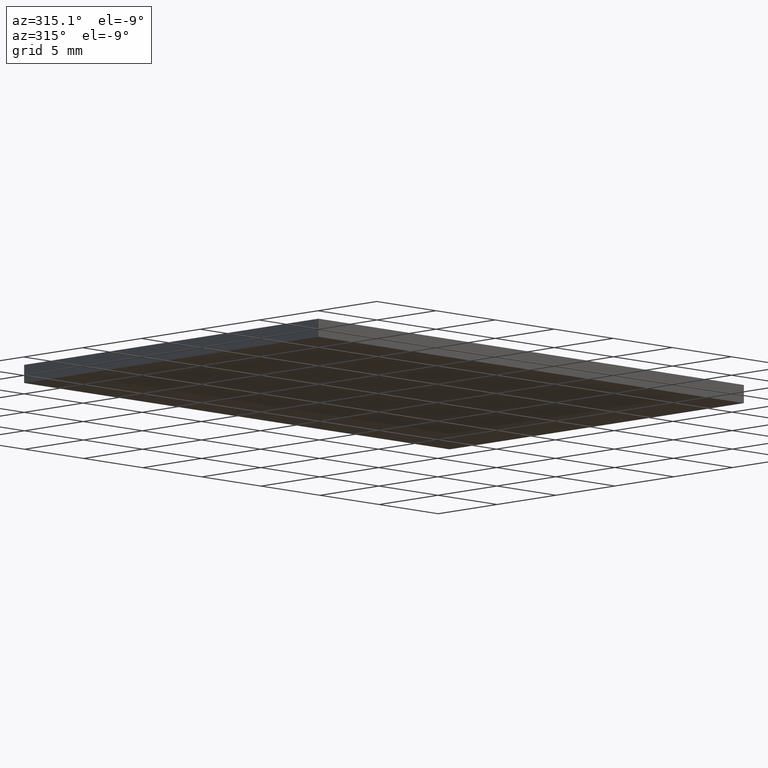
[diagram: clean part render]
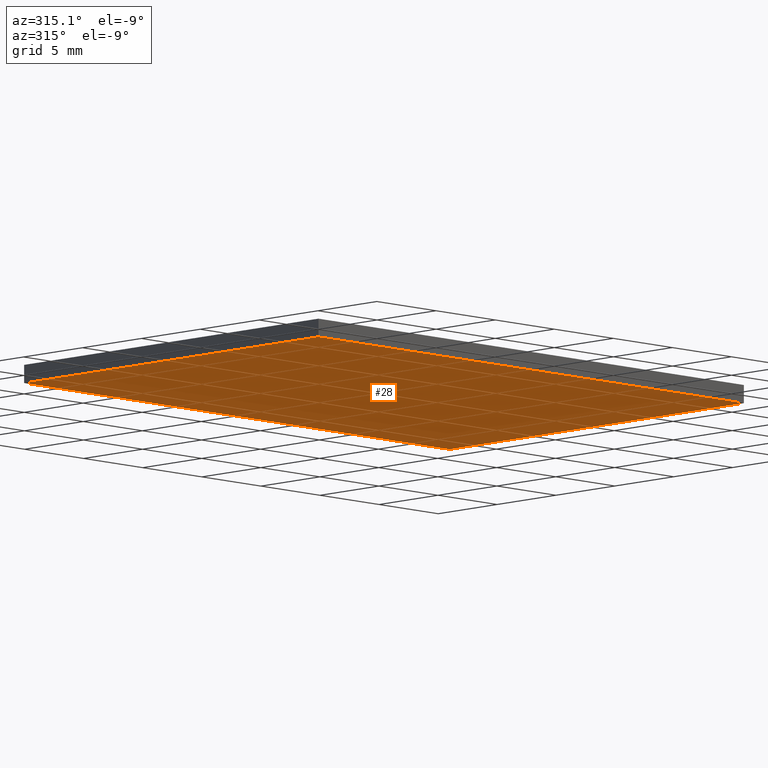
[diagram: same view with one face highlighted and labeled with its STEP entity id]
A machine part, auxiliary view. The second image highlights one B-rep face of the part: STEP entity #28.
In plain terms, the highlighted planar face has unit normal (0, 0, -1).
Its self-contained STEP definition (entity closure, byte-faithful):
#5 = EDGE_CURVE ( 'NONE', #15, #185, #174, .T. ) ;
#11 = CARTESIAN_POINT ( 'NONE',  ( 0.000000000000000000, 25.00000000000000000, 0.000000000000000000 ) ) ;
#14 = DIRECTION ( 'NONE',  ( 0.000000000000000000, 1.000000000000000000, 0.000000000000000000 ) ) ;
#15 = VERTEX_POINT ( 'NONE', #73 ) ;
#17 = VECTOR ( 'NONE', #55, 1000.000000000000000 ) ;
#28 = ADVANCED_FACE ( 'NONE', ( #133 ), #153, .T. ) ;
#33 = CARTESIAN_POINT ( 'NONE',  ( 0.000000000000000000, 0.000000000000000000, 0.000000000000000000 ) ) ;
#34 = AXIS2_PLACEMENT_3D ( 'NONE', #57, #198, #169 ) ;
#35 = CARTESIAN_POINT ( 'NONE',  ( 0.000000000000000000, 0.000000000000000000, 0.000000000000000000 ) ) ;
#36 = CARTESIAN_POINT ( 'NONE',  ( 36.00000000000000000, 0.000000000000000000, 0.000000000000000000 ) ) ;
#55 = DIRECTION ( 'NONE',  ( 1.000000000000000000, 0.000000000000000000, 0.000000000000000000 ) ) ;
#57 = CARTESIAN_POINT ( 'NONE',  ( 0.000000000000000000, 0.000000000000000000, 0.000000000000000000 ) ) ;
#60 = ORIENTED_EDGE ( 'NONE', *, *, #74, .F. ) ;
#61 = EDGE_LOOP ( 'NONE', ( #172, #60, #78, #173 ) ) ;
#64 = EDGE_CURVE ( 'NONE', #185, #141, #182, .T. ) ;
#71 = VECTOR ( 'NONE', #95, 1000.000000000000000 ) ;
#73 = CARTESIAN_POINT ( 'NONE',  ( 0.000000000000000000, 0.000000000000000000, 0.000000000000000000 ) ) ;
#74 = EDGE_CURVE ( 'NONE', #141, #123, #134, .T. ) ;
#78 = ORIENTED_EDGE ( 'NONE', *, *, #64, .F. ) ;
#82 = EDGE_CURVE ( 'NONE', #123, #15, #110, .T. ) ;
#83 = DIRECTION ( 'NONE',  ( -1.000000000000000000, -0.000000000000000000, -0.000000000000000000 ) ) ;
#85 = CARTESIAN_POINT ( 'NONE',  ( 36.00000000000000000, 25.00000000000000000, 0.000000000000000000 ) ) ;
#90 = CARTESIAN_POINT ( 'NONE',  ( 36.00000000000000000, 0.000000000000000000, 0.000000000000000000 ) ) ;
#95 = DIRECTION ( 'NONE',  ( -0.000000000000000000, -1.000000000000000000, -0.000000000000000000 ) ) ;
#110 = LINE ( 'NONE', #35, #71 ) ;
#123 = VERTEX_POINT ( 'NONE', #11 ) ;
#133 = FACE_OUTER_BOUND ( 'NONE', #61, .T. ) ;
#134 = LINE ( 'NONE', #188, #176 ) ;
#141 = VERTEX_POINT ( 'NONE', #85 ) ;
#153 = PLANE ( 'NONE',  #34 ) ;
#169 = DIRECTION ( 'NONE',  ( -1.000000000000000000, 0.000000000000000000, -0.000000000000000000 ) ) ;
#172 = ORIENTED_EDGE ( 'NONE', *, *, #82, .F. ) ;
#173 = ORIENTED_EDGE ( 'NONE', *, *, #5, .F. ) ;
#174 = LINE ( 'NONE', #33, #17 ) ;
#176 = VECTOR ( 'NONE', #83, 1000.000000000000000 ) ;
#182 = LINE ( 'NONE', #90, #196 ) ;
#185 = VERTEX_POINT ( 'NONE', #36 ) ;
#188 = CARTESIAN_POINT ( 'NONE',  ( 0.000000000000000000, 25.00000000000000000, 0.000000000000000000 ) ) ;
#196 = VECTOR ( 'NONE', #14, 1000.000000000000000 ) ;
#198 = DIRECTION ( 'NONE',  ( 0.000000000000000000, 0.000000000000000000, -1.000000000000000000 ) ) ;